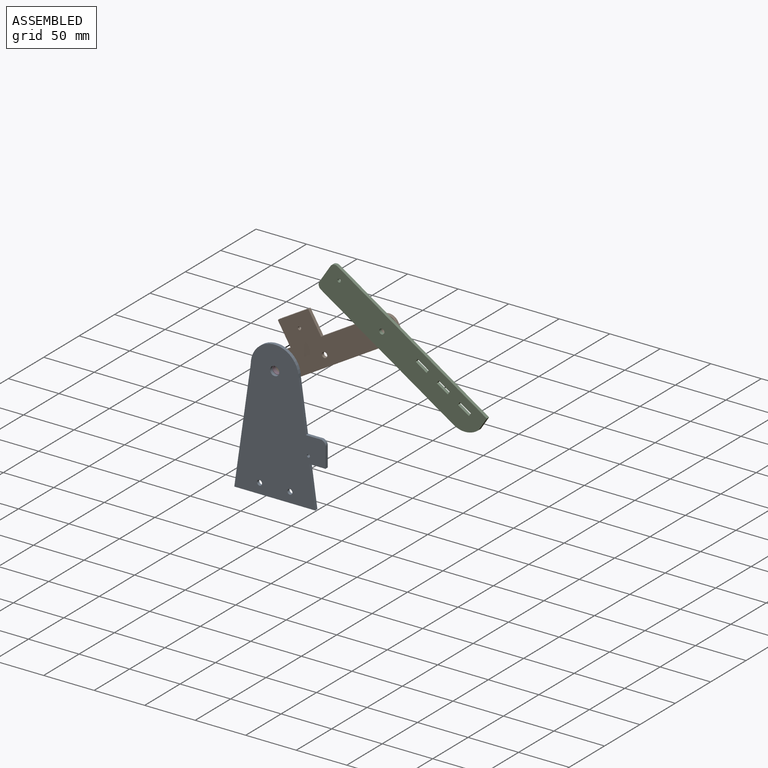
[diagram: assembled view]
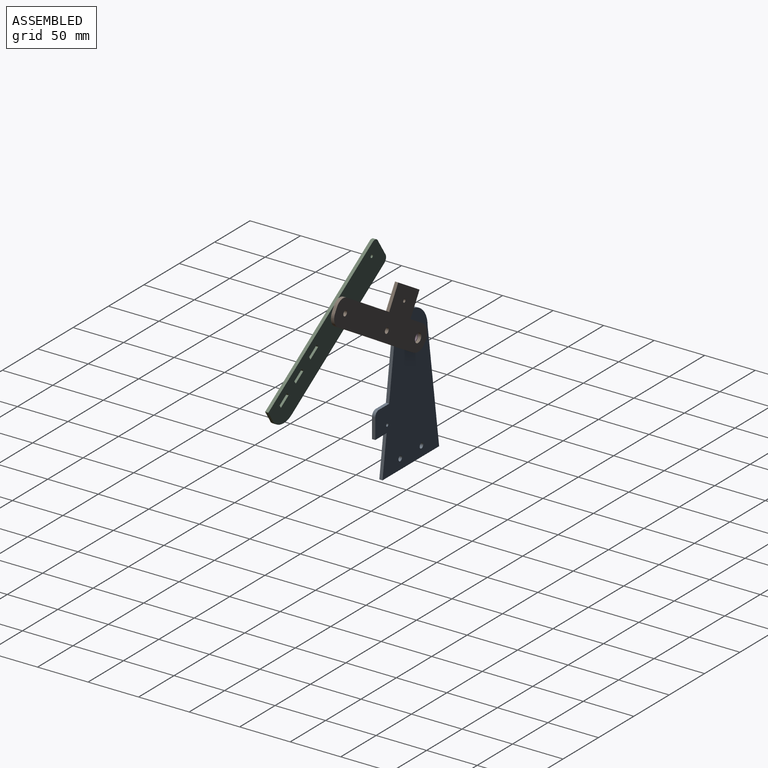
[diagram: assembled view, second angle]
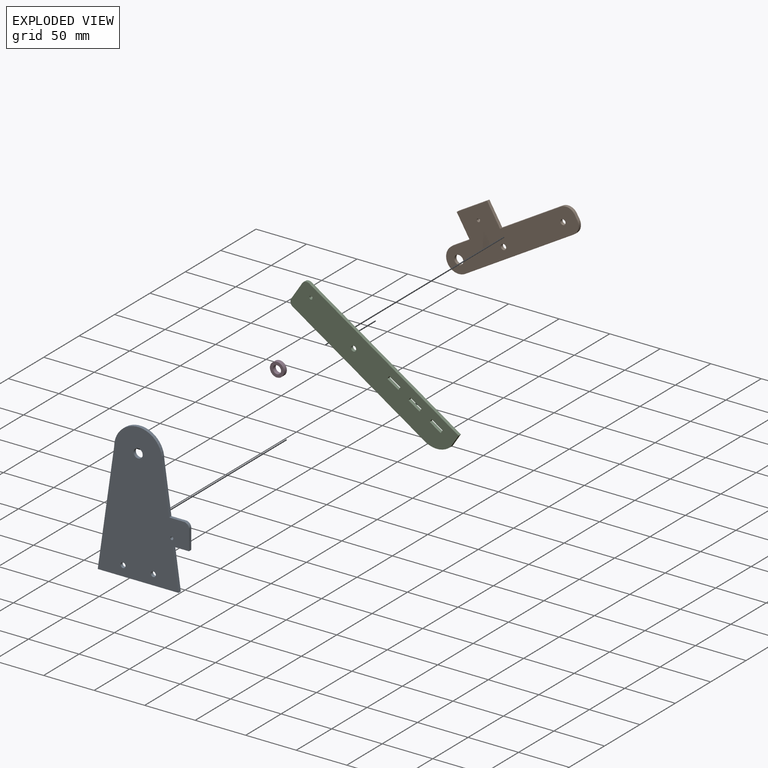
[diagram: exploded view]
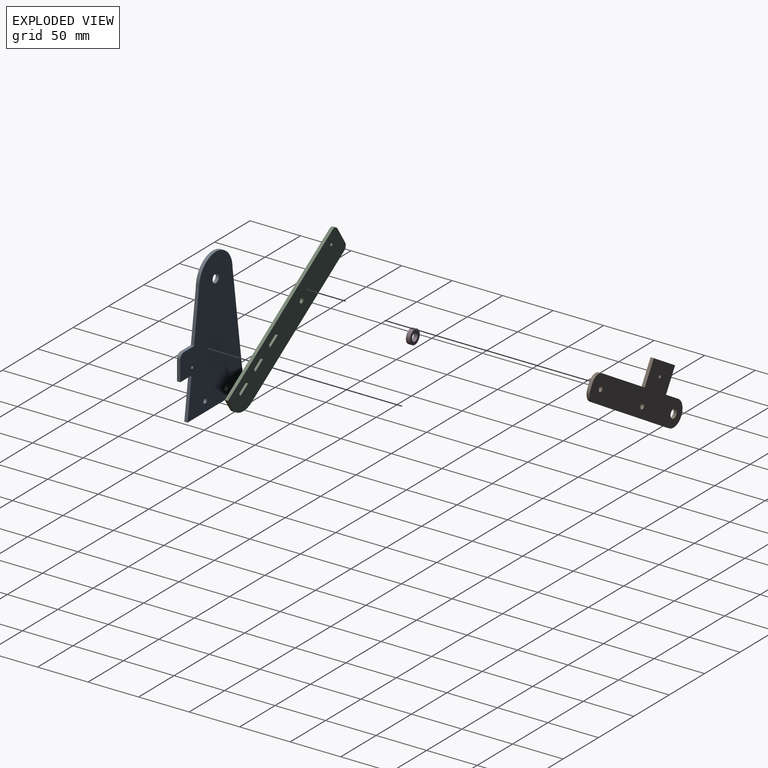
[diagram: exploded view, second angle]
ASSEMBLY  parts=4 mates=3
PART A: 15 faces, bbox 90.3x3.2x137.7 mm
  f0: plane 20x3.2mm, normal (1,0,0), area 64mm2, adj f11,f12,f13,f14
  f1: plane 14.57x3.2mm, normal (0,0,1), area 46.6mm2, adj f2,f12,f13,f14
  f2: plane 49x7mm, normal (0.99,0,0.14), area 158.4mm2, adj f1,f3,f12,f13
  f3: cylinder r=23.71mm len=47.43mm, axis (0,1,0), area 238.4mm2, adj f2,f4,f12,f13
  f4: plane 114x16.29mm, normal (-0.99,0,0.14), area 368.5mm2, adj f3,f5,f12,f13
  f5: plane 80x3.2mm, normal (0,0,-1), area 256mm2, adj f4,f6,f12,f13
  f6: plane 40x5.71mm, normal (0.99,0,0.14), area 129.3mm2, adj f5,f11,f12,f13
  f7: cylinder r=4.5mm len=9mm, axis (0,1,0), area 90.5mm2, adj f12,f13
  f8: cylinder r=2.5mm len=5mm, axis (0,1,0), area 50.3mm2, adj f12,f13
  f9: cylinder r=2.5mm len=5mm, axis (0,1,0), area 50.3mm2, adj f12,f13
  f10: cylinder r=1.5mm len=3.2mm, axis (0,1,0), area 30.2mm2, adj f12,f13
  f11: plane 16x3.2mm, normal (0,0,-1), area 51.2mm2, adj f0,f6,f12,f13
  f12: plane 137.71x90.29mm, normal (0,-1,0), area 8476.1mm2, adj f0,f1,f2,f3,f4,f5,f6,f7
  f13: plane 137.71x90.29mm, normal (0,1,0), area 8476.1mm2, adj f0,f1,f2,f3,f4,f5,f6,f7
  f14: cylinder r=5mm len=5mm, axis (0,1,0), area 25.1mm2, adj f0,f1,f12,f13
PART B: 16 faces, bbox 147.5x3.2x50 mm
  f0: plane 25x3.2mm, normal (-1,0,0), area 80mm2, adj f1,f11,f12,f13
  f1: plane 20x3.2mm, normal (0,0,1), area 64mm2, adj f0,f2,f12,f13
  f2: cylinder r=12.5mm len=25mm, axis (0,1,0), area 125.7mm2, adj f1,f3,f12,f13
  f3: plane 125x3.2mm, normal (0,0,-1), area 400mm2, adj f2,f12,f13,f14
  f4: plane 5x3.2mm, normal (1,0,0), area 16mm2, adj f12,f13,f14,f15
  f5: plane 70x3.2mm, normal (0,0,1), area 224mm2, adj f6,f12,f13,f15
  f6: plane 25x3.2mm, normal (1,0,0), area 80mm2, adj f5,f11,f12,f13
  f7: cylinder r=4.5mm len=9mm, axis (0,1,0), area 90.5mm2, adj f12,f13
  f8: cylinder r=2.6mm len=5.2mm, axis (0,1,0), area 52.3mm2, adj f12,f13
  f9: cylinder r=2.7mm len=5.4mm, axis (0,1,0), area 54.3mm2, adj f12,f13
  f10: cylinder r=1.6mm len=3.2mm, axis (0,1,0), area 32.2mm2, adj f12,f13
  f11: plane 35x3.2mm, normal (0,0,1), area 112mm2, adj f0,f6,f12,f13
  f12: plane 147.5x50mm, normal (0,-1,0), area 4336.7mm2, adj f0,f1,f2,f3,f4,f5,f6,f7
  f13: plane 147.5x50mm, normal (0,1,0), area 4336.7mm2, adj f0,f1,f2,f3,f4,f5,f6,f7
  f14: cylinder r=10mm len=10mm, axis (0,-1,0), area 50.3mm2, adj f3,f4,f12,f13
  f15: cylinder r=10mm len=10mm, axis (0,-1,0), area 50.3mm2, adj f4,f5,f12,f13
PART C: 23 faces, bbox 181.5x3.2x30 mm
  f0: plane 156.5x3.2mm, normal (0,0,-1), area 500.8mm2, adj f1,f19,f20,f22
  f1: cylinder r=20.83mm len=20mm, axis (0,1,0), area 85.8mm2, adj f0,f2,f19,f20
  f2: plane 15x3.2mm, normal (1,0,0), area 48mm2, adj f1,f3,f19,f20
  f3: plane 176.5x3.2mm, normal (0,0,1), area 564.8mm2, adj f2,f19,f20,f21
  f4: plane 13x3.2mm, normal (0,0,1), area 41.6mm2, adj f5,f13,f19,f20
  f5: plane 3.4x3.2mm, normal (1,0,0), area 10.9mm2, adj f4,f6,f19,f20
  f6: plane 13x3.2mm, normal (0,0,-1), area 41.6mm2, adj f5,f13,f19,f20
  f7: plane 3.4x3.2mm, normal (-1,0,0), area 10.9mm2, adj f8,f14,f19,f20
  f8: plane 13x3.2mm, normal (0,0,1), area 41.6mm2, adj f7,f9,f19,f20
  f9: plane 3.4x3.2mm, normal (1,0,0), area 10.9mm2, adj f8,f14,f19,f20
  f10: plane 3.4x3.2mm, normal (1,0,0), area 10.9mm2, adj f11,f15,f19,f20
  f11: plane 13x3.2mm, normal (0,0,-1), area 41.6mm2, adj f10,f12,f19,f20
  f12: plane 3.4x3.2mm, normal (-1,0,0), area 10.9mm2, adj f11,f15,f19,f20
  f13: plane 3.4x3.2mm, normal (-1,0,0), area 10.9mm2, adj f4,f6,f19,f20
  f14: plane 13x3.2mm, normal (0,0,-1), area 41.6mm2, adj f7,f9,f19,f20
  f15: plane 13x3.2mm, normal (0,0,1), area 41.6mm2, adj f10,f12,f19,f20
  f16: cylinder r=2.6mm len=5.2mm, axis (0,1,0), area 52.3mm2, adj f19,f20
  f17: cylinder r=1.6mm len=3.2mm, axis (0,1,0), area 32.2mm2, adj f19,f20
  f18: plane 20x3.2mm, normal (-1,0,0), area 64mm2, adj f19,f20,f21,f22
  f19: plane 181.5x30mm, normal (0,-1,0), area 5193.4mm2, adj f0,f1,f2,f3,f4,f5,f6,f7
  f20: plane 181.5x30mm, normal (0,1,0), area 5193.4mm2, adj f0,f1,f2,f3,f4,f5,f6,f7
  f21: cylinder r=5mm len=5mm, axis (0,1,0), area 25.1mm2, adj f3,f18,f19,f20
  f22: cylinder r=5mm len=5mm, axis (0,-1,0), area 25.1mm2, adj f0,f18,f19,f20
PART D: 4 faces, bbox 14x4x14 mm
  f0: cylinder r=4mm len=8mm, axis (0,-1,0), area 100.5mm2, adj f2,f3
  f1: cylinder r=7mm len=14mm, axis (0,-1,0), area 175.9mm2, adj f2,f3
  f2: plane 14x14mm, normal (0,1,0), area 103.7mm2, adj f0,f1
  f3: plane 14x14mm, normal (0,-1,0), area 103.7mm2, adj f0,f1
PLACE A t=(-85.02,29.8,-41.23)mm fixed
PLACE B rot(axis=(0,-1,0),30.8deg) t=(-33.47,37,33.46)mm
PLACE C rot(axis=(0,1,0),33.2deg) t=(59.47,33.8,37.1)mm
PLACE D t=(-85.59,29.8,2.77)mm
MATE revolute B.f8 <-> C.f16  axis (0,-1,0) through (18.09,33.8,64.15)mm
MATE revolute D.f0 <-> B.f7  axis (0,1,0) through (-85.02,33.8,2.77)mm
MATE fastened A.f7 <-> D.f0  axis (0,1,0) through (-85.02,29.8,2.77)mm
